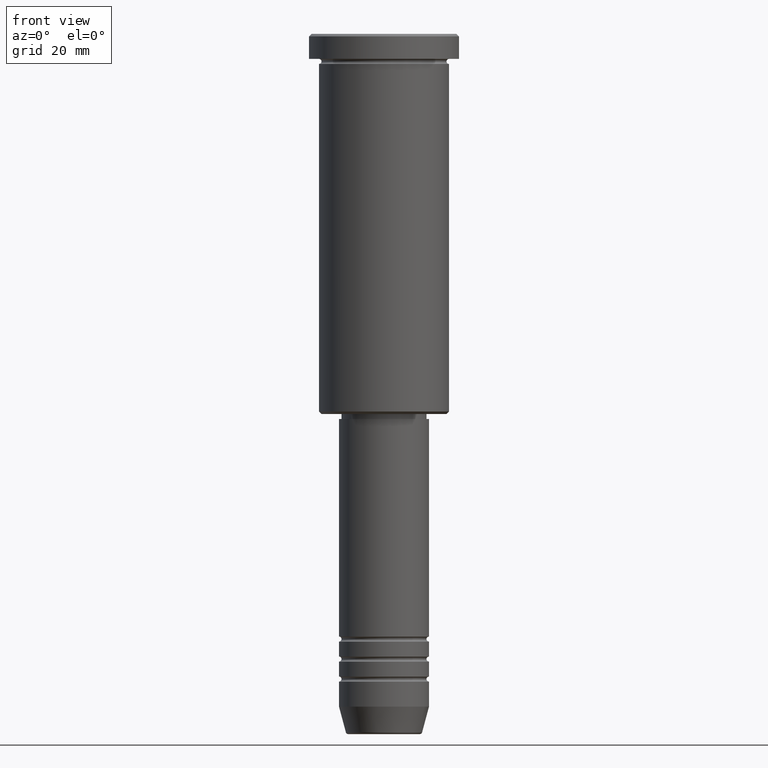
[diagram: clean part render]
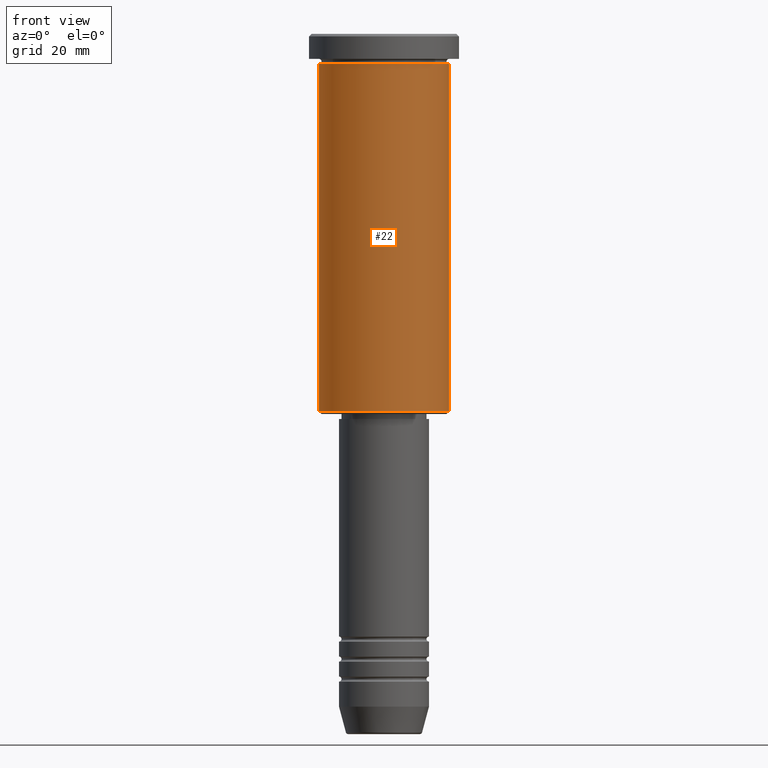
[diagram: same view with one face highlighted and labeled with its STEP entity id]
A machine part, front view. The second image highlights one B-rep face of the part: STEP entity #22.
In plain terms, the highlighted cylindrical surface (partial cylindrical patch) has radius 13 mm, axis along (-0, -0, 1).
Its self-contained STEP definition (entity closure, byte-faithful):
#17 = DIRECTION ( 'NONE',  ( -0.000000000000000000, -0.000000000000000000, 1.000000000000000000 ) ) ;
#22 = ADVANCED_FACE ( 'NONE', ( #894 ), #671, .T. ) ;
#32 = CIRCLE ( 'NONE', #570, 13.00000000000000178 ) ;
#50 = AXIS2_PLACEMENT_3D ( 'NONE', #126, #833, #1102 ) ;
#85 = VERTEX_POINT ( 'NONE', #1085 ) ;
#126 = CARTESIAN_POINT ( 'NONE',  ( 0.000000000000000000, 0.000000000000000000, -5.999999999999999112 ) ) ;
#160 = ORIENTED_EDGE ( 'NONE', *, *, #343, .F. ) ;
#168 = VECTOR ( 'NONE', #421, 1000.000000000000000 ) ;
#169 = CARTESIAN_POINT ( 'NONE',  ( -13.00000000000000178, 1.592040838891559293E-15, -75.50000000000000000 ) ) ;
#180 = CARTESIAN_POINT ( 'NONE',  ( 0.000000000000000000, 0.000000000000000000, -75.50000000000000000 ) ) ;
#208 = CARTESIAN_POINT ( 'NONE',  ( 0.000000000000000000, 0.000000000000000000, 0.000000000000000000 ) ) ;
#211 = EDGE_CURVE ( 'NONE', #620, #731, #994, .T. ) ;
#239 = CARTESIAN_POINT ( 'NONE',  ( 13.00000000000000178, 0.000000000000000000, -5.999999999999999112 ) ) ;
#270 = DIRECTION ( 'NONE',  ( -1.000000000000000000, 0.000000000000000000, 0.000000000000000000 ) ) ;
#295 = DIRECTION ( 'NONE',  ( -0.000000000000000000, -0.000000000000000000, 1.000000000000000000 ) ) ;
#316 = EDGE_LOOP ( 'NONE', ( #997, #380, #695, #160 ) ) ;
#334 = DIRECTION ( 'NONE',  ( -0.000000000000000000, -0.000000000000000000, 1.000000000000000000 ) ) ;
#343 = EDGE_CURVE ( 'NONE', #731, #810, #375, .T. ) ;
#375 = CIRCLE ( 'NONE', #50, 13.00000000000000178 ) ;
#380 = ORIENTED_EDGE ( 'NONE', *, *, #985, .T. ) ;
#385 = EDGE_CURVE ( 'NONE', #85, #810, #1136, .T. ) ;
#421 = DIRECTION ( 'NONE',  ( -0.000000000000000000, -0.000000000000000000, 1.000000000000000000 ) ) ;
#566 = VECTOR ( 'NONE', #17, 1000.000000000000000 ) ;
#570 = AXIS2_PLACEMENT_3D ( 'NONE', #180, #334, #270 ) ;
#620 = VERTEX_POINT ( 'NONE', #169 ) ;
#652 = CARTESIAN_POINT ( 'NONE',  ( -13.00000000000000178, 1.592040838891559293E-15, -5.999999999999999112 ) ) ;
#671 = CYLINDRICAL_SURFACE ( 'NONE', #944, 13.00000000000000178 ) ;
#695 = ORIENTED_EDGE ( 'NONE', *, *, #385, .T. ) ;
#731 = VERTEX_POINT ( 'NONE', #652 ) ;
#810 = VERTEX_POINT ( 'NONE', #239 ) ;
#833 = DIRECTION ( 'NONE',  ( -0.000000000000000000, -0.000000000000000000, 1.000000000000000000 ) ) ;
#894 = FACE_OUTER_BOUND ( 'NONE', #316, .T. ) ;
#944 = AXIS2_PLACEMENT_3D ( 'NONE', #208, #295, #1028 ) ;
#970 = CARTESIAN_POINT ( 'NONE',  ( 13.00000000000000178, 0.000000000000000000, 0.000000000000000000 ) ) ;
#985 = EDGE_CURVE ( 'NONE', #620, #85, #32, .T. ) ;
#994 = LINE ( 'NONE', #1040, #566 ) ;
#997 = ORIENTED_EDGE ( 'NONE', *, *, #211, .F. ) ;
#1028 = DIRECTION ( 'NONE',  ( 1.000000000000000000, 0.000000000000000000, 0.000000000000000000 ) ) ;
#1040 = CARTESIAN_POINT ( 'NONE',  ( -13.00000000000000178, 1.592040838891559293E-15, 0.000000000000000000 ) ) ;
#1085 = CARTESIAN_POINT ( 'NONE',  ( 13.00000000000000178, 0.000000000000000000, -75.50000000000000000 ) ) ;
#1102 = DIRECTION ( 'NONE',  ( 1.000000000000000000, 0.000000000000000000, 0.000000000000000000 ) ) ;
#1136 = LINE ( 'NONE', #970, #168 ) ;